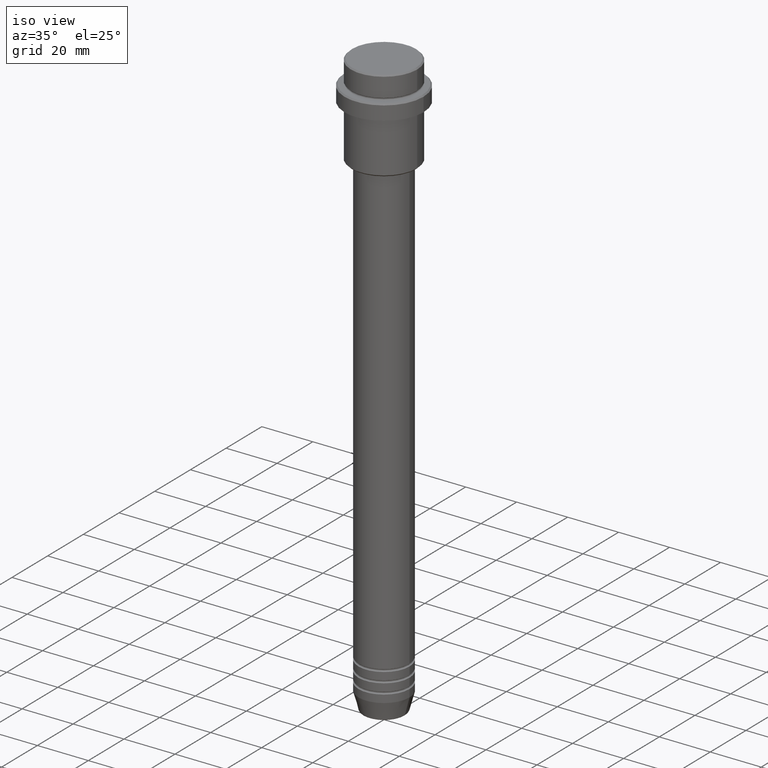
[diagram: clean part render]
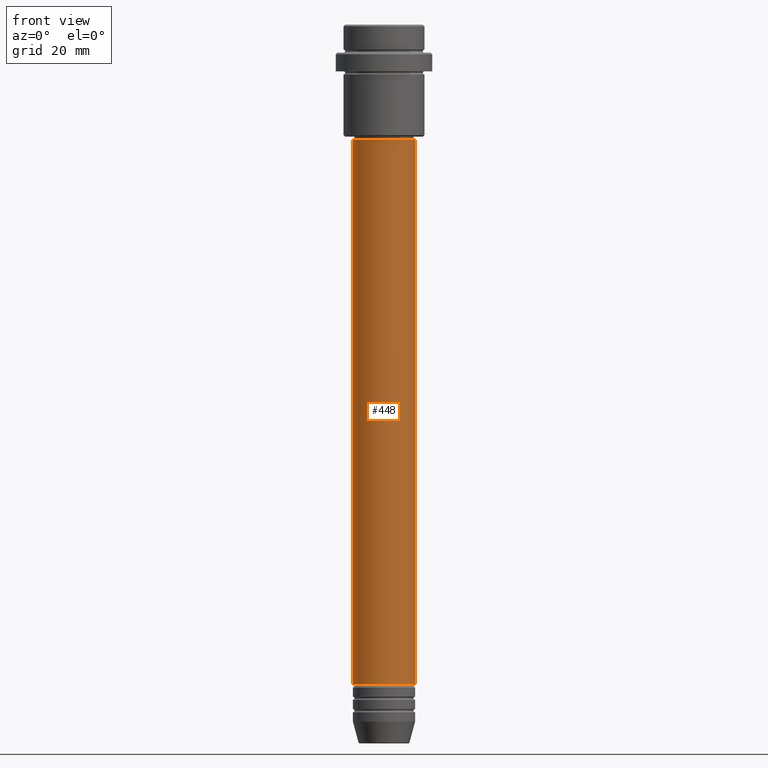
[diagram: tour spotlight — one face highlighted and labeled with its STEP entity id]
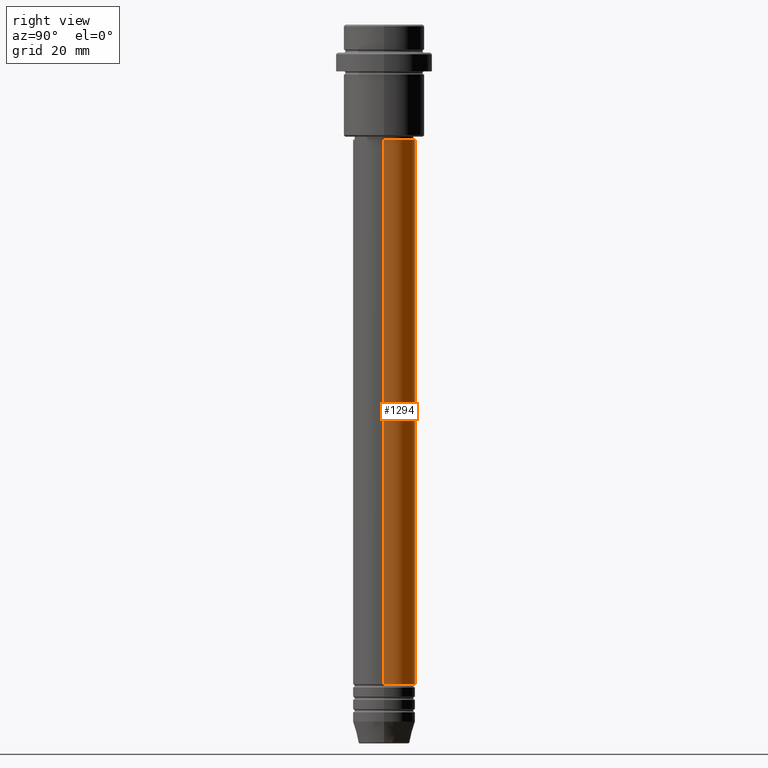
[diagram: tour spotlight — one face highlighted and labeled with its STEP entity id]
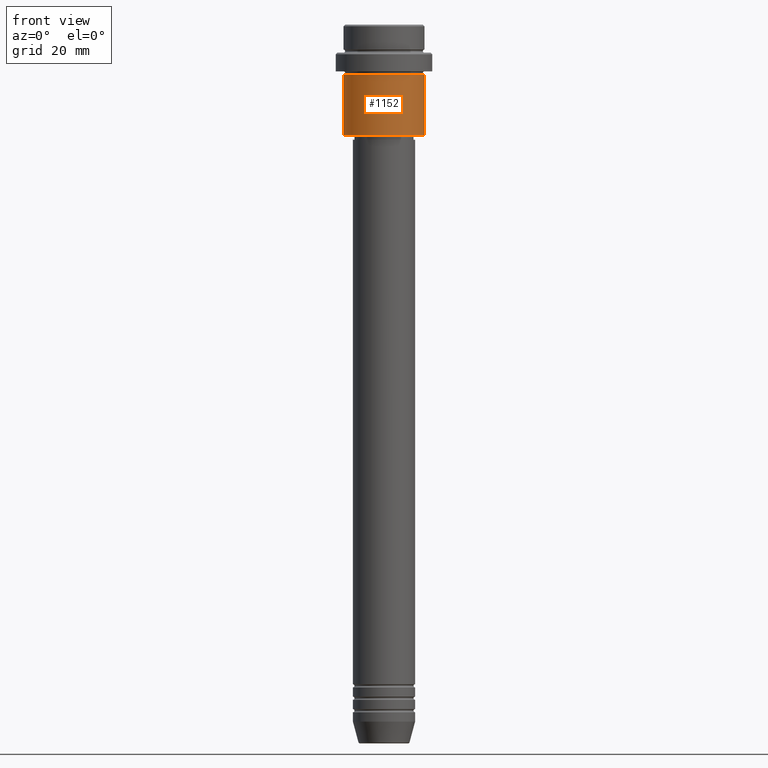
[diagram: tour spotlight — one face highlighted and labeled with its STEP entity id]
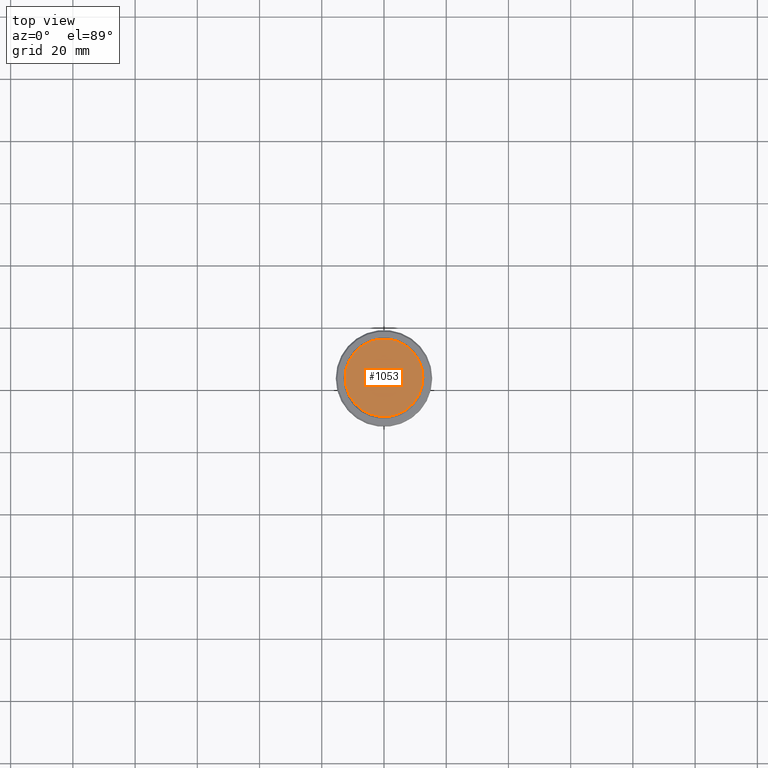
[diagram: tour spotlight — one face highlighted and labeled with its STEP entity id]
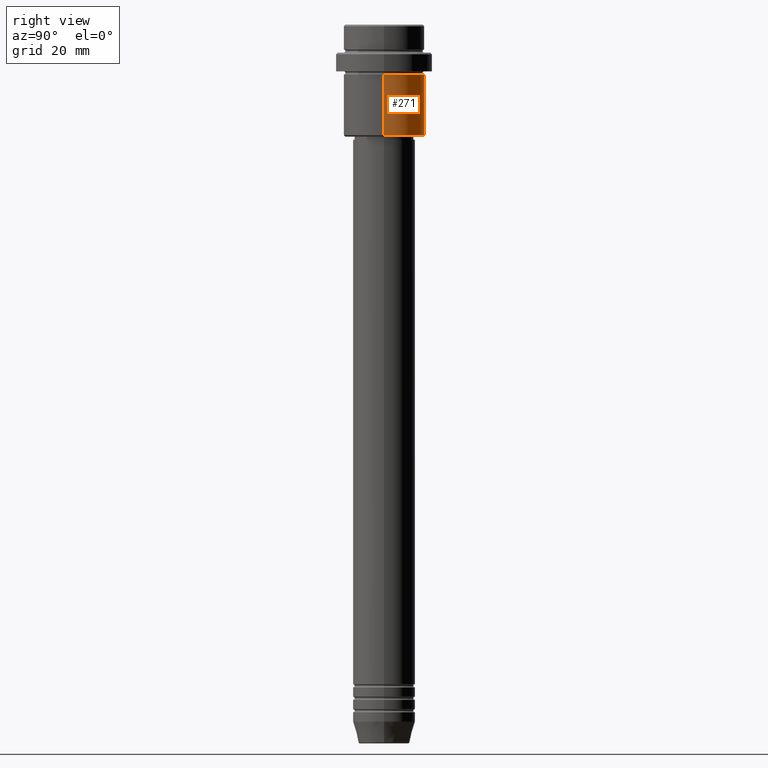
[diagram: tour spotlight — one face highlighted and labeled with its STEP entity id]
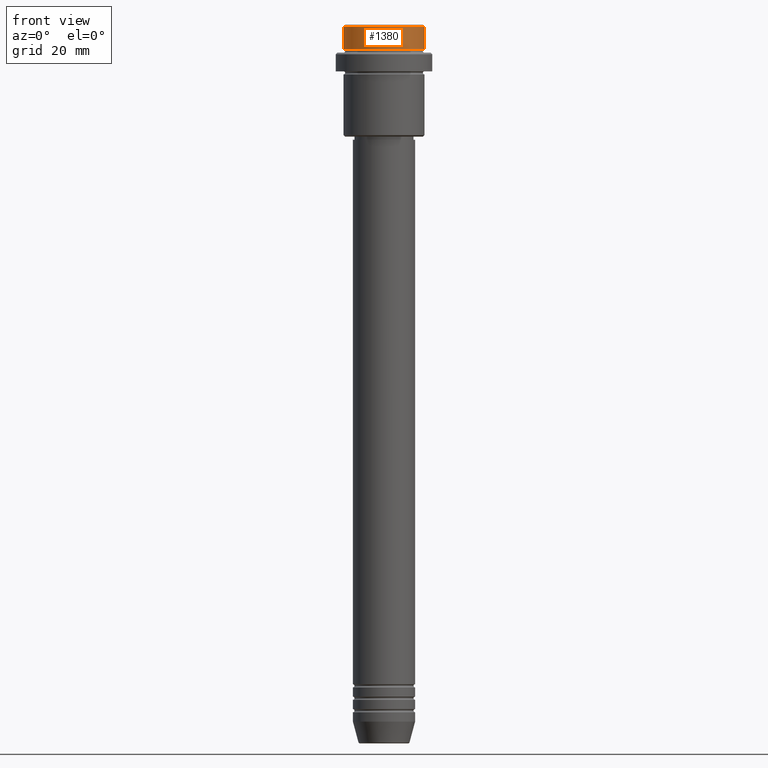
[diagram: tour spotlight — one face highlighted and labeled with its STEP entity id]
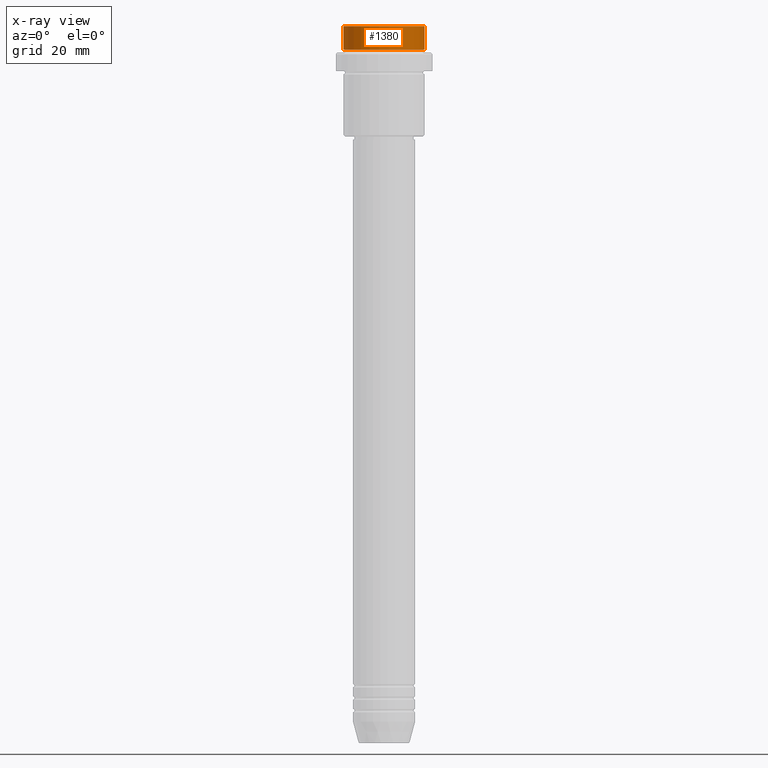
[diagram: x-ray of the same camera — body ghosted, this tour face saturated]
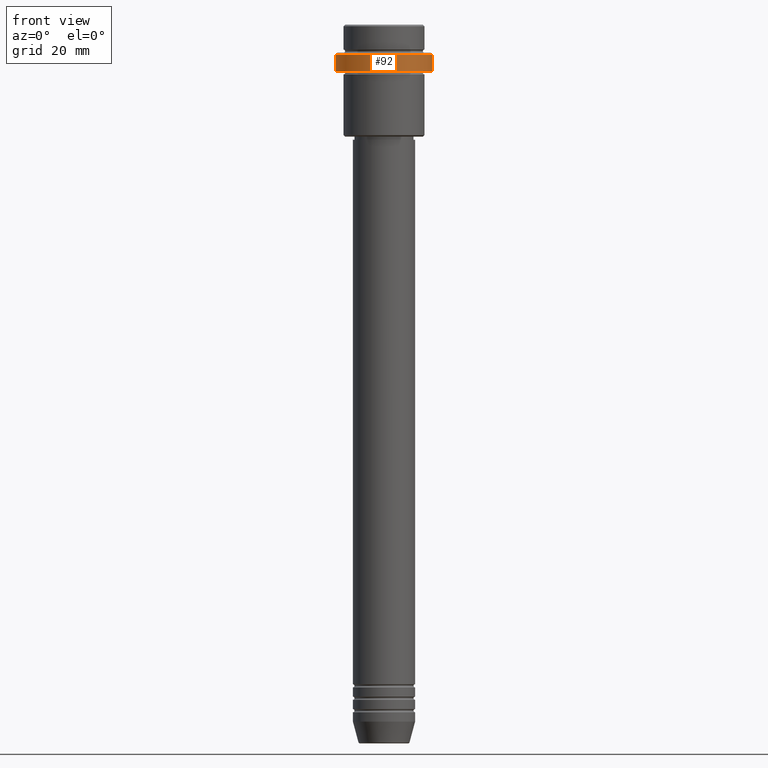
[diagram: tour spotlight — one face highlighted and labeled with its STEP entity id]
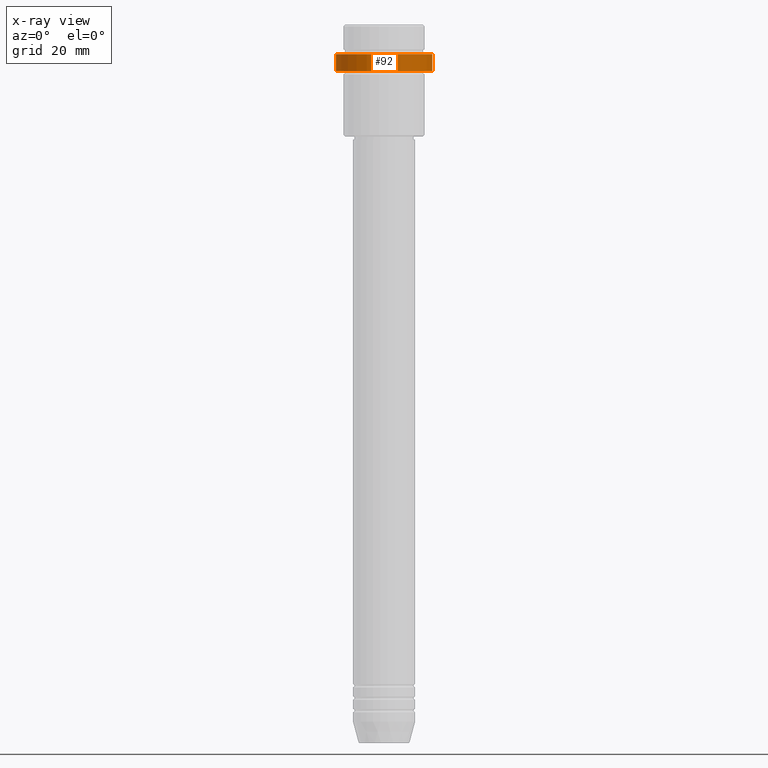
[diagram: x-ray of the same camera — body ghosted, this tour face saturated]
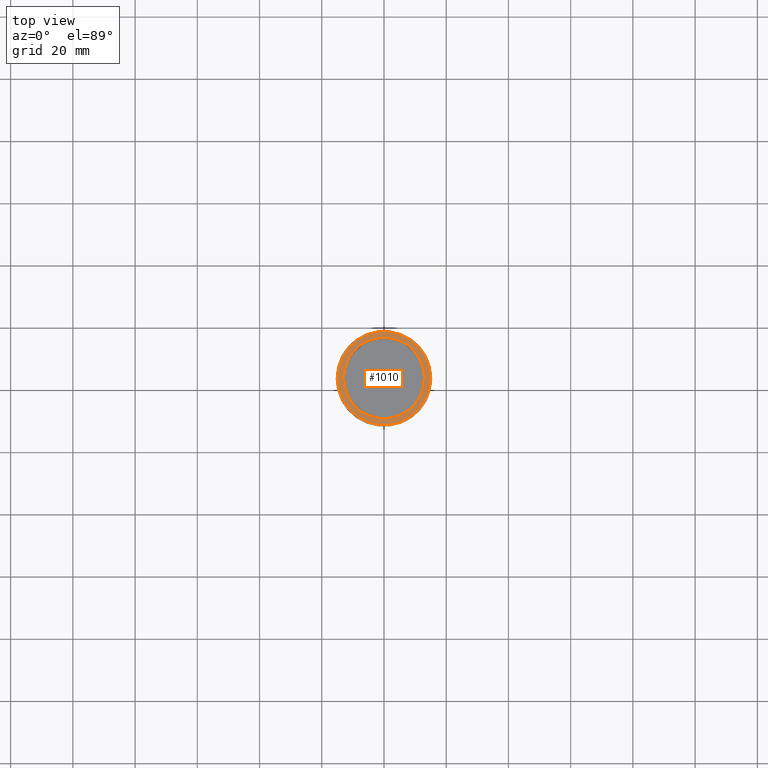
[diagram: tour spotlight — one face highlighted and labeled with its STEP entity id]
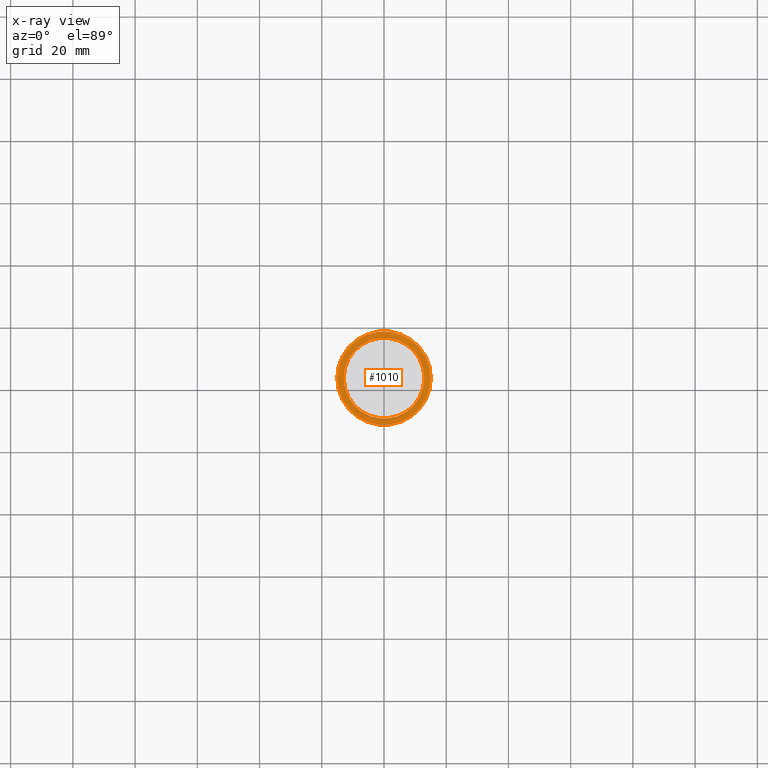
[diagram: x-ray of the same camera — body ghosted, this tour face saturated]
A machine part: a face-by-face anatomy tour. The part has 52 B-rep faces; the first image is the clean iso view, then the 8 largest visible faces are spotlighted one at a time (largest first), each with its STEP entity span.

Face 1 — front view, entity #448. In plain terms, the highlighted cylindrical surface (edge-blend (fillet) strip) has radius 10 mm, axis along (-0, -0, 1).
Definition (entity closure, byte-faithful):
#189 = ORIENTED_EDGE ( 'NONE', *, *, #756, .T. ) ;
#283 = VERTEX_POINT ( 'NONE', #499 ) ;
#292 = AXIS2_PLACEMENT_3D ( 'NONE', #1044, #854, #1378 ) ;
#362 = VECTOR ( 'NONE', #733, 1000.000000000000000 ) ;
#381 = AXIS2_PLACEMENT_3D ( 'NONE', #665, #1211, #900 ) ;
#391 = CARTESIAN_POINT ( 'NONE',  ( -10.00000000000000000, 1.224646799147353256E-15, -211.9999999999999432 ) ) ;
#393 = VERTEX_POINT ( 'NONE', #1299 ) ;
#395 = DIRECTION ( 'NONE',  ( 1.000000000000000000, 0.000000000000000000, 0.000000000000000000 ) ) ;
#423 = EDGE_CURVE ( 'NONE', #283, #1039, #673, .T. ) ;
#433 = EDGE_CURVE ( 'NONE', #393, #1039, #933, .T. ) ;
#448 = ADVANCED_FACE ( 'NONE', ( #515 ), #741, .T. ) ;
#477 = AXIS2_PLACEMENT_3D ( 'NONE', #969, #775, #395 ) ;
#499 = CARTESIAN_POINT ( 'NONE',  ( 10.00000000000000000, 0.000000000000000000, -211.9999999999999432 ) ) ;
#515 = FACE_OUTER_BOUND ( 'NONE', #970, .T. ) ;
#584 = DIRECTION ( 'NONE',  ( -0.000000000000000000, -0.000000000000000000, 1.000000000000000000 ) ) ;
#605 = ORIENTED_EDGE ( 'NONE', *, *, #993, .F. ) ;
#665 = CARTESIAN_POINT ( 'NONE',  ( 0.000000000000000000, 0.000000000000000000, -37.00000000000001421 ) ) ;
#673 = LINE ( 'NONE', #965, #362 ) ;
#718 = ORIENTED_EDGE ( 'NONE', *, *, #423, .T. ) ;
#733 = DIRECTION ( 'NONE',  ( -0.000000000000000000, -0.000000000000000000, 1.000000000000000000 ) ) ;
#741 = CYLINDRICAL_SURFACE ( 'NONE', #477, 10.00000000000000178 ) ;
#756 = EDGE_CURVE ( 'NONE', #1180, #283, #1190, .T. ) ;
#775 = DIRECTION ( 'NONE',  ( -0.000000000000000000, -0.000000000000000000, 1.000000000000000000 ) ) ;
#787 = CARTESIAN_POINT ( 'NONE',  ( 10.00000000000000178, 0.000000000000000000, -37.00000000000001421 ) ) ;
#795 = CARTESIAN_POINT ( 'NONE',  ( -10.00000000000000178, 1.224646799147353454E-15, 0.000000000000000000 ) ) ;
#854 = DIRECTION ( 'NONE',  ( -0.000000000000000000, -0.000000000000000000, 1.000000000000000000 ) ) ;
#900 = DIRECTION ( 'NONE',  ( 1.000000000000000000, 0.000000000000000000, 0.000000000000000000 ) ) ;
#918 = LINE ( 'NONE', #795, #1169 ) ;
#933 = CIRCLE ( 'NONE', #381, 10.00000000000000178 ) ;
#965 = CARTESIAN_POINT ( 'NONE',  ( 10.00000000000000178, 0.000000000000000000, 0.000000000000000000 ) ) ;
#969 = CARTESIAN_POINT ( 'NONE',  ( 0.000000000000000000, 0.000000000000000000, 0.000000000000000000 ) ) ;
#970 = EDGE_LOOP ( 'NONE', ( #605, #189, #718, #1160 ) ) ;
#993 = EDGE_CURVE ( 'NONE', #1180, #393, #918, .T. ) ;
#1039 = VERTEX_POINT ( 'NONE', #787 ) ;
#1044 = CARTESIAN_POINT ( 'NONE',  ( 0.000000000000000000, 0.000000000000000000, -211.9999999999999432 ) ) ;
#1160 = ORIENTED_EDGE ( 'NONE', *, *, #433, .F. ) ;
#1169 = VECTOR ( 'NONE', #584, 1000.000000000000000 ) ;
#1180 = VERTEX_POINT ( 'NONE', #391 ) ;
#1190 = CIRCLE ( 'NONE', #292, 10.00000000000000000 ) ;
#1211 = DIRECTION ( 'NONE',  ( -0.000000000000000000, -0.000000000000000000, 1.000000000000000000 ) ) ;
#1299 = CARTESIAN_POINT ( 'NONE',  ( -10.00000000000000178, 1.224646799147353454E-15, -37.00000000000001421 ) ) ;
#1378 = DIRECTION ( 'NONE',  ( 1.000000000000000000, 0.000000000000000000, 0.000000000000000000 ) ) ;

Face 2 — right view, entity #1294. In plain terms, the highlighted cylindrical surface (edge-blend (fillet) strip) has radius 10 mm, axis along (-0, -0, 1).
Definition (entity closure, byte-faithful):
#1 = AXIS2_PLACEMENT_3D ( 'NONE', #1298, #989, #664 ) ;
#153 = DIRECTION ( 'NONE',  ( 1.000000000000000000, 0.000000000000000000, 0.000000000000000000 ) ) ;
#256 = CARTESIAN_POINT ( 'NONE',  ( 0.000000000000000000, 0.000000000000000000, -211.9999999999999432 ) ) ;
#282 = EDGE_LOOP ( 'NONE', ( #351, #1072, #821, #1013 ) ) ;
#283 = VERTEX_POINT ( 'NONE', #499 ) ;
#296 = AXIS2_PLACEMENT_3D ( 'NONE', #1178, #311, #1095 ) ;
#311 = DIRECTION ( 'NONE',  ( -0.000000000000000000, -0.000000000000000000, 1.000000000000000000 ) ) ;
#351 = ORIENTED_EDGE ( 'NONE', *, *, #1204, .T. ) ;
#362 = VECTOR ( 'NONE', #733, 1000.000000000000000 ) ;
#391 = CARTESIAN_POINT ( 'NONE',  ( -10.00000000000000000, 1.224646799147353256E-15, -211.9999999999999432 ) ) ;
#393 = VERTEX_POINT ( 'NONE', #1299 ) ;
#423 = EDGE_CURVE ( 'NONE', #283, #1039, #673, .T. ) ;
#426 = CYLINDRICAL_SURFACE ( 'NONE', #296, 10.00000000000000178 ) ;
#499 = CARTESIAN_POINT ( 'NONE',  ( 10.00000000000000000, 0.000000000000000000, -211.9999999999999432 ) ) ;
#584 = DIRECTION ( 'NONE',  ( -0.000000000000000000, -0.000000000000000000, 1.000000000000000000 ) ) ;
#664 = DIRECTION ( 'NONE',  ( 1.000000000000000000, 0.000000000000000000, 0.000000000000000000 ) ) ;
#673 = LINE ( 'NONE', #965, #362 ) ;
#717 = CIRCLE ( 'NONE', #1, 10.00000000000000178 ) ;
#733 = DIRECTION ( 'NONE',  ( -0.000000000000000000, -0.000000000000000000, 1.000000000000000000 ) ) ;
#787 = CARTESIAN_POINT ( 'NONE',  ( 10.00000000000000178, 0.000000000000000000, -37.00000000000001421 ) ) ;
#795 = CARTESIAN_POINT ( 'NONE',  ( -10.00000000000000178, 1.224646799147353454E-15, 0.000000000000000000 ) ) ;
#815 = CIRCLE ( 'NONE', #892, 10.00000000000000000 ) ;
#821 = ORIENTED_EDGE ( 'NONE', *, *, #825, .F. ) ;
#825 = EDGE_CURVE ( 'NONE', #1039, #393, #717, .T. ) ;
#892 = AXIS2_PLACEMENT_3D ( 'NONE', #256, #1146, #153 ) ;
#918 = LINE ( 'NONE', #795, #1169 ) ;
#965 = CARTESIAN_POINT ( 'NONE',  ( 10.00000000000000178, 0.000000000000000000, 0.000000000000000000 ) ) ;
#989 = DIRECTION ( 'NONE',  ( -0.000000000000000000, -0.000000000000000000, 1.000000000000000000 ) ) ;
#993 = EDGE_CURVE ( 'NONE', #1180, #393, #918, .T. ) ;
#1013 = ORIENTED_EDGE ( 'NONE', *, *, #423, .F. ) ;
#1039 = VERTEX_POINT ( 'NONE', #787 ) ;
#1072 = ORIENTED_EDGE ( 'NONE', *, *, #993, .T. ) ;
#1095 = DIRECTION ( 'NONE',  ( 1.000000000000000000, 0.000000000000000000, 0.000000000000000000 ) ) ;
#1146 = DIRECTION ( 'NONE',  ( -0.000000000000000000, -0.000000000000000000, 1.000000000000000000 ) ) ;
#1169 = VECTOR ( 'NONE', #584, 1000.000000000000000 ) ;
#1178 = CARTESIAN_POINT ( 'NONE',  ( 0.000000000000000000, 0.000000000000000000, 0.000000000000000000 ) ) ;
#1180 = VERTEX_POINT ( 'NONE', #391 ) ;
#1203 = FACE_OUTER_BOUND ( 'NONE', #282, .T. ) ;
#1204 = EDGE_CURVE ( 'NONE', #283, #1180, #815, .T. ) ;
#1294 = ADVANCED_FACE ( 'NONE', ( #1203 ), #426, .T. ) ;
#1298 = CARTESIAN_POINT ( 'NONE',  ( 0.000000000000000000, 0.000000000000000000, -37.00000000000001421 ) ) ;
#1299 = CARTESIAN_POINT ( 'NONE',  ( -10.00000000000000178, 1.224646799147353454E-15, -37.00000000000001421 ) ) ;

Face 3 — front view, entity #1152. In plain terms, the highlighted cylindrical surface (partial cylindrical patch) has radius 13 mm, axis along (-0, -0, 1).
Definition (entity closure, byte-faithful):
#16 = CARTESIAN_POINT ( 'NONE',  ( 0.000000000000000000, 0.000000000000000000, -16.00000000000000000 ) ) ;
#20 = CIRCLE ( 'NONE', #811, 13.00000000000000000 ) ;
#29 = DIRECTION ( 'NONE',  ( 1.000000000000000000, 0.000000000000000000, 0.000000000000000000 ) ) ;
#34 = DIRECTION ( 'NONE',  ( -0.000000000000000000, -0.000000000000000000, 1.000000000000000000 ) ) ;
#50 = EDGE_LOOP ( 'NONE', ( #1402, #1091, #512, #238 ) ) ;
#72 = EDGE_CURVE ( 'NONE', #610, #513, #1368, .T. ) ;
#80 = EDGE_CURVE ( 'NONE', #1280, #610, #115, .T. ) ;
#100 = LINE ( 'NONE', #655, #385 ) ;
#115 = LINE ( 'NONE', #685, #1416 ) ;
#167 = DIRECTION ( 'NONE',  ( -0.000000000000000000, -0.000000000000000000, 1.000000000000000000 ) ) ;
#238 = ORIENTED_EDGE ( 'NONE', *, *, #72, .F. ) ;
#265 = CYLINDRICAL_SURFACE ( 'NONE', #957, 13.00000000000000000 ) ;
#274 = FACE_OUTER_BOUND ( 'NONE', #50, .T. ) ;
#305 = VERTEX_POINT ( 'NONE', #486 ) ;
#331 = EDGE_CURVE ( 'NONE', #1280, #305, #20, .T. ) ;
#385 = VECTOR ( 'NONE', #637, 1000.000000000000000 ) ;
#476 = AXIS2_PLACEMENT_3D ( 'NONE', #16, #1311, #29 ) ;
#486 = CARTESIAN_POINT ( 'NONE',  ( 13.00000000000000000, 0.000000000000000000, -35.50000000000003553 ) ) ;
#512 = ORIENTED_EDGE ( 'NONE', *, *, #1252, .T. ) ;
#513 = VERTEX_POINT ( 'NONE', #820 ) ;
#602 = DIRECTION ( 'NONE',  ( 1.000000000000000000, 0.000000000000000000, 0.000000000000000000 ) ) ;
#610 = VERTEX_POINT ( 'NONE', #686 ) ;
#637 = DIRECTION ( 'NONE',  ( -0.000000000000000000, -0.000000000000000000, 1.000000000000000000 ) ) ;
#655 = CARTESIAN_POINT ( 'NONE',  ( 13.00000000000000000, 0.000000000000000000, 0.000000000000000000 ) ) ;
#685 = CARTESIAN_POINT ( 'NONE',  ( -13.00000000000000000, 1.592040838891559095E-15, 0.000000000000000000 ) ) ;
#686 = CARTESIAN_POINT ( 'NONE',  ( -13.00000000000000000, 1.592040838891559095E-15, -16.00000000000000000 ) ) ;
#705 = CARTESIAN_POINT ( 'NONE',  ( 0.000000000000000000, 0.000000000000000000, -35.50000000000003553 ) ) ;
#729 = CARTESIAN_POINT ( 'NONE',  ( 0.000000000000000000, 0.000000000000000000, 0.000000000000000000 ) ) ;
#778 = CARTESIAN_POINT ( 'NONE',  ( -13.00000000000000000, 1.592040838891559095E-15, -35.50000000000003553 ) ) ;
#785 = DIRECTION ( 'NONE',  ( -0.000000000000000000, -0.000000000000000000, 1.000000000000000000 ) ) ;
#811 = AXIS2_PLACEMENT_3D ( 'NONE', #705, #34, #1141 ) ;
#820 = CARTESIAN_POINT ( 'NONE',  ( 13.00000000000000000, 0.000000000000000000, -16.00000000000000000 ) ) ;
#957 = AXIS2_PLACEMENT_3D ( 'NONE', #729, #167, #602 ) ;
#1091 = ORIENTED_EDGE ( 'NONE', *, *, #331, .T. ) ;
#1141 = DIRECTION ( 'NONE',  ( -1.000000000000000000, 0.000000000000000000, 0.000000000000000000 ) ) ;
#1152 = ADVANCED_FACE ( 'NONE', ( #274 ), #265, .T. ) ;
#1252 = EDGE_CURVE ( 'NONE', #305, #513, #100, .T. ) ;
#1280 = VERTEX_POINT ( 'NONE', #778 ) ;
#1311 = DIRECTION ( 'NONE',  ( -0.000000000000000000, -0.000000000000000000, 1.000000000000000000 ) ) ;
#1368 = CIRCLE ( 'NONE', #476, 13.00000000000000000 ) ;
#1402 = ORIENTED_EDGE ( 'NONE', *, *, #80, .F. ) ;
#1416 = VECTOR ( 'NONE', #785, 1000.000000000000000 ) ;

Face 4 — top view, entity #1053. In plain terms, the highlighted planar face has unit normal (0, -0, 1).
Definition (entity closure, byte-faithful):
#3 = AXIS2_PLACEMENT_3D ( 'NONE', #890, #439, #868 ) ;
#350 = ORIENTED_EDGE ( 'NONE', *, *, #1151, .T. ) ;
#439 = DIRECTION ( 'NONE',  ( -0.000000000000000000, -0.000000000000000000, 1.000000000000000000 ) ) ;
#456 = CIRCLE ( 'NONE', #773, 12.49999999999998579 ) ;
#466 = FACE_OUTER_BOUND ( 'NONE', #488, .T. ) ;
#474 = CARTESIAN_POINT ( 'NONE',  ( -12.49999999999998579, 0.000000000000000000, 0.000000000000000000 ) ) ;
#488 = EDGE_LOOP ( 'NONE', ( #1222, #350 ) ) ;
#498 = VERTEX_POINT ( 'NONE', #474 ) ;
#563 = DIRECTION ( 'NONE',  ( 1.000000000000000000, 0.000000000000000000, 0.000000000000000000 ) ) ;
#621 = CARTESIAN_POINT ( 'NONE',  ( 0.000000000000000000, 0.000000000000000000, 0.000000000000000000 ) ) ;
#773 = AXIS2_PLACEMENT_3D ( 'NONE', #621, #944, #1263 ) ;
#868 = DIRECTION ( 'NONE',  ( 1.000000000000000000, 0.000000000000000000, 0.000000000000000000 ) ) ;
#890 = CARTESIAN_POINT ( 'NONE',  ( 0.000000000000000000, 0.000000000000000000, 0.000000000000000000 ) ) ;
#895 = EDGE_CURVE ( 'NONE', #498, #1239, #1059, .T. ) ;
#925 = CARTESIAN_POINT ( 'NONE',  ( 0.000000000000000000, 0.000000000000000000, 0.000000000000000000 ) ) ;
#944 = DIRECTION ( 'NONE',  ( -0.000000000000000000, -0.000000000000000000, 1.000000000000000000 ) ) ;
#1053 = ADVANCED_FACE ( 'NONE', ( #466 ), #1329, .T. ) ;
#1059 = CIRCLE ( 'NONE', #3, 12.49999999999998579 ) ;
#1101 = CARTESIAN_POINT ( 'NONE',  ( 12.49999999999998579, 1.561424668912874125E-15, 0.000000000000000000 ) ) ;
#1117 = DIRECTION ( 'NONE',  ( 0.000000000000000000, -0.000000000000000000, 1.000000000000000000 ) ) ;
#1151 = EDGE_CURVE ( 'NONE', #1239, #498, #456, .T. ) ;
#1222 = ORIENTED_EDGE ( 'NONE', *, *, #895, .T. ) ;
#1239 = VERTEX_POINT ( 'NONE', #1101 ) ;
#1263 = DIRECTION ( 'NONE',  ( 1.000000000000000000, 0.000000000000000000, 0.000000000000000000 ) ) ;
#1279 = AXIS2_PLACEMENT_3D ( 'NONE', #925, #1117, #563 ) ;
#1329 = PLANE ( 'NONE',  #1279 ) ;

Face 5 — right view, entity #271. In plain terms, the highlighted cylindrical surface (partial cylindrical patch) has radius 13 mm, axis along (-0, -0, 1).
Definition (entity closure, byte-faithful):
#51 = DIRECTION ( 'NONE',  ( 1.000000000000000000, 0.000000000000000000, 0.000000000000000000 ) ) ;
#80 = EDGE_CURVE ( 'NONE', #1280, #610, #115, .T. ) ;
#100 = LINE ( 'NONE', #655, #385 ) ;
#115 = LINE ( 'NONE', #685, #1416 ) ;
#127 = ORIENTED_EDGE ( 'NONE', *, *, #1252, .F. ) ;
#147 = DIRECTION ( 'NONE',  ( 1.000000000000000000, 0.000000000000000000, 0.000000000000000000 ) ) ;
#165 = FACE_OUTER_BOUND ( 'NONE', #1140, .T. ) ;
#246 = DIRECTION ( 'NONE',  ( -0.000000000000000000, -0.000000000000000000, 1.000000000000000000 ) ) ;
#251 = CARTESIAN_POINT ( 'NONE',  ( 0.000000000000000000, 0.000000000000000000, 0.000000000000000000 ) ) ;
#271 = ADVANCED_FACE ( 'NONE', ( #165 ), #1051, .T. ) ;
#305 = VERTEX_POINT ( 'NONE', #486 ) ;
#385 = VECTOR ( 'NONE', #637, 1000.000000000000000 ) ;
#411 = CIRCLE ( 'NONE', #867, 13.00000000000000000 ) ;
#486 = CARTESIAN_POINT ( 'NONE',  ( 13.00000000000000000, 0.000000000000000000, -35.50000000000003553 ) ) ;
#513 = VERTEX_POINT ( 'NONE', #820 ) ;
#518 = ORIENTED_EDGE ( 'NONE', *, *, #1341, .T. ) ;
#610 = VERTEX_POINT ( 'NONE', #686 ) ;
#623 = AXIS2_PLACEMENT_3D ( 'NONE', #1408, #760, #1173 ) ;
#637 = DIRECTION ( 'NONE',  ( -0.000000000000000000, -0.000000000000000000, 1.000000000000000000 ) ) ;
#654 = ORIENTED_EDGE ( 'NONE', *, *, #1175, .F. ) ;
#655 = CARTESIAN_POINT ( 'NONE',  ( 13.00000000000000000, 0.000000000000000000, 0.000000000000000000 ) ) ;
#685 = CARTESIAN_POINT ( 'NONE',  ( -13.00000000000000000, 1.592040838891559095E-15, 0.000000000000000000 ) ) ;
#686 = CARTESIAN_POINT ( 'NONE',  ( -13.00000000000000000, 1.592040838891559095E-15, -16.00000000000000000 ) ) ;
#721 = CIRCLE ( 'NONE', #623, 13.00000000000000000 ) ;
#739 = ORIENTED_EDGE ( 'NONE', *, *, #80, .T. ) ;
#760 = DIRECTION ( 'NONE',  ( -0.000000000000000000, -0.000000000000000000, 1.000000000000000000 ) ) ;
#778 = CARTESIAN_POINT ( 'NONE',  ( -13.00000000000000000, 1.592040838891559095E-15, -35.50000000000003553 ) ) ;
#785 = DIRECTION ( 'NONE',  ( -0.000000000000000000, -0.000000000000000000, 1.000000000000000000 ) ) ;
#820 = CARTESIAN_POINT ( 'NONE',  ( 13.00000000000000000, 0.000000000000000000, -16.00000000000000000 ) ) ;
#858 = AXIS2_PLACEMENT_3D ( 'NONE', #251, #246, #51 ) ;
#867 = AXIS2_PLACEMENT_3D ( 'NONE', #1245, #1142, #147 ) ;
#1051 = CYLINDRICAL_SURFACE ( 'NONE', #858, 13.00000000000000000 ) ;
#1140 = EDGE_LOOP ( 'NONE', ( #518, #739, #654, #127 ) ) ;
#1142 = DIRECTION ( 'NONE',  ( -0.000000000000000000, -0.000000000000000000, 1.000000000000000000 ) ) ;
#1173 = DIRECTION ( 'NONE',  ( -1.000000000000000000, 0.000000000000000000, 0.000000000000000000 ) ) ;
#1175 = EDGE_CURVE ( 'NONE', #513, #610, #411, .T. ) ;
#1245 = CARTESIAN_POINT ( 'NONE',  ( 0.000000000000000000, 0.000000000000000000, -16.00000000000000000 ) ) ;
#1252 = EDGE_CURVE ( 'NONE', #305, #513, #100, .T. ) ;
#1280 = VERTEX_POINT ( 'NONE', #778 ) ;
#1341 = EDGE_CURVE ( 'NONE', #305, #1280, #721, .T. ) ;
#1408 = CARTESIAN_POINT ( 'NONE',  ( 0.000000000000000000, 0.000000000000000000, -35.50000000000003553 ) ) ;
#1416 = VECTOR ( 'NONE', #785, 1000.000000000000000 ) ;

Face 6 — front view, entity #1380. An x-ray twin of the same camera follows (body ghosted, this face saturated) — the face is partly hidden behind the body. In plain terms, the highlighted cylindrical surface (partial cylindrical patch) has radius 13 mm, axis along (-0, -0, 1).
Definition (entity closure, byte-faithful):
#52 = VERTEX_POINT ( 'NONE', #1068 ) ;
#58 = CARTESIAN_POINT ( 'NONE',  ( -12.99999999999999822, 1.592040838891558898E-15, -0.5000000000000316414 ) ) ;
#88 = VECTOR ( 'NONE', #754, 1000.000000000000000 ) ;
#195 = ORIENTED_EDGE ( 'NONE', *, *, #702, .T. ) ;
#217 = DIRECTION ( 'NONE',  ( -0.000000000000000000, -0.000000000000000000, 1.000000000000000000 ) ) ;
#270 = ORIENTED_EDGE ( 'NONE', *, *, #921, .T. ) ;
#281 = DIRECTION ( 'NONE',  ( 0.000000000000000000, 0.000000000000000000, -1.000000000000000000 ) ) ;
#299 = CARTESIAN_POINT ( 'NONE',  ( 12.99999999999999822, 0.000000000000000000, 0.000000000000000000 ) ) ;
#327 = CARTESIAN_POINT ( 'NONE',  ( 12.99999999999999822, 0.000000000000000000, -7.999999999999998224 ) ) ;
#344 = AXIS2_PLACEMENT_3D ( 'NONE', #1214, #217, #909 ) ;
#408 = CIRCLE ( 'NONE', #1302, 12.99999999999999822 ) ;
#412 = VERTEX_POINT ( 'NONE', #327 ) ;
#470 = VERTEX_POINT ( 'NONE', #992 ) ;
#544 = FACE_OUTER_BOUND ( 'NONE', #885, .T. ) ;
#604 = DIRECTION ( 'NONE',  ( 1.000000000000000000, 0.000000000000000000, 0.000000000000000000 ) ) ;
#619 = AXIS2_PLACEMENT_3D ( 'NONE', #847, #281, #1384 ) ;
#648 = LINE ( 'NONE', #299, #88 ) ;
#702 = EDGE_CURVE ( 'NONE', #470, #412, #408, .T. ) ;
#707 = EDGE_CURVE ( 'NONE', #52, #1078, #1238, .T. ) ;
#754 = DIRECTION ( 'NONE',  ( -0.000000000000000000, -0.000000000000000000, 1.000000000000000000 ) ) ;
#777 = ORIENTED_EDGE ( 'NONE', *, *, #1084, .F. ) ;
#841 = CARTESIAN_POINT ( 'NONE',  ( 0.000000000000000000, 0.000000000000000000, -7.999999999999998224 ) ) ;
#847 = CARTESIAN_POINT ( 'NONE',  ( 0.000000000000000000, 0.000000000000000000, -0.5000000000000316414 ) ) ;
#885 = EDGE_LOOP ( 'NONE', ( #777, #195, #270, #1082 ) ) ;
#891 = VECTOR ( 'NONE', #939, 1000.000000000000000 ) ;
#909 = DIRECTION ( 'NONE',  ( 1.000000000000000000, 0.000000000000000000, 0.000000000000000000 ) ) ;
#921 = EDGE_CURVE ( 'NONE', #412, #52, #648, .T. ) ;
#939 = DIRECTION ( 'NONE',  ( -0.000000000000000000, -0.000000000000000000, 1.000000000000000000 ) ) ;
#949 = CARTESIAN_POINT ( 'NONE',  ( -12.99999999999999822, 1.592040838891558898E-15, 0.000000000000000000 ) ) ;
#992 = CARTESIAN_POINT ( 'NONE',  ( -12.99999999999999822, 1.592040838891558898E-15, -7.999999999999998224 ) ) ;
#1068 = CARTESIAN_POINT ( 'NONE',  ( 12.99999999999999822, 0.000000000000000000, -0.5000000000000316414 ) ) ;
#1078 = VERTEX_POINT ( 'NONE', #58 ) ;
#1082 = ORIENTED_EDGE ( 'NONE', *, *, #707, .T. ) ;
#1084 = EDGE_CURVE ( 'NONE', #470, #1078, #1383, .T. ) ;
#1214 = CARTESIAN_POINT ( 'NONE',  ( 0.000000000000000000, 0.000000000000000000, 0.000000000000000000 ) ) ;
#1238 = CIRCLE ( 'NONE', #619, 12.99999999999999822 ) ;
#1264 = DIRECTION ( 'NONE',  ( -0.000000000000000000, -0.000000000000000000, 1.000000000000000000 ) ) ;
#1302 = AXIS2_PLACEMENT_3D ( 'NONE', #841, #1264, #604 ) ;
#1317 = CYLINDRICAL_SURFACE ( 'NONE', #344, 12.99999999999999822 ) ;
#1380 = ADVANCED_FACE ( 'NONE', ( #544 ), #1317, .T. ) ;
#1383 = LINE ( 'NONE', #949, #891 ) ;
#1384 = DIRECTION ( 'NONE',  ( 1.000000000000000000, 0.000000000000000000, 0.000000000000000000 ) ) ;

Face 7 — front view, entity #92. An x-ray twin of the same camera follows (body ghosted, this face saturated) — the face is partly hidden behind the body. In plain terms, the highlighted cylindrical surface (partial cylindrical patch) has radius 15.5 mm, axis along (-0, -0, 1).
Definition (entity closure, byte-faithful):
#33 = EDGE_CURVE ( 'NONE', #684, #211, #1349, .T. ) ;
#91 = LINE ( 'NONE', #995, #181 ) ;
#92 = ADVANCED_FACE ( 'NONE', ( #459 ), #923, .T. ) ;
#163 = CARTESIAN_POINT ( 'NONE',  ( 15.50000000000000000, 0.000000000000000000, -9.500000000000014211 ) ) ;
#178 = CIRCLE ( 'NONE', #364, 15.50000000000000000 ) ;
#181 = VECTOR ( 'NONE', #538, 1000.000000000000000 ) ;
#202 = VECTOR ( 'NONE', #704, 1000.000000000000000 ) ;
#209 = DIRECTION ( 'NONE',  ( 1.000000000000000000, 0.000000000000000000, 0.000000000000000000 ) ) ;
#211 = VERTEX_POINT ( 'NONE', #1120 ) ;
#297 = CARTESIAN_POINT ( 'NONE',  ( 0.000000000000000000, 0.000000000000000000, -15.00000000000000178 ) ) ;
#306 = DIRECTION ( 'NONE',  ( 1.000000000000000000, 0.000000000000000000, 0.000000000000000000 ) ) ;
#357 = CARTESIAN_POINT ( 'NONE',  ( 0.000000000000000000, 0.000000000000000000, 0.000000000000000000 ) ) ;
#364 = AXIS2_PLACEMENT_3D ( 'NONE', #876, #428, #306 ) ;
#386 = CARTESIAN_POINT ( 'NONE',  ( -15.50000000000000000, 1.898202538678397557E-15, -9.500000000000014211 ) ) ;
#396 = EDGE_LOOP ( 'NONE', ( #808, #770, #1027, #740 ) ) ;
#428 = DIRECTION ( 'NONE',  ( 0.000000000000000000, 0.000000000000000000, -1.000000000000000000 ) ) ;
#459 = FACE_OUTER_BOUND ( 'NONE', #396, .T. ) ;
#538 = DIRECTION ( 'NONE',  ( -0.000000000000000000, -0.000000000000000000, 1.000000000000000000 ) ) ;
#608 = EDGE_CURVE ( 'NONE', #684, #662, #682, .T. ) ;
#630 = DIRECTION ( 'NONE',  ( 1.000000000000000000, 0.000000000000000000, 0.000000000000000000 ) ) ;
#662 = VERTEX_POINT ( 'NONE', #386 ) ;
#682 = LINE ( 'NONE', #1241, #202 ) ;
#684 = VERTEX_POINT ( 'NONE', #1371 ) ;
#704 = DIRECTION ( 'NONE',  ( -0.000000000000000000, -0.000000000000000000, 1.000000000000000000 ) ) ;
#740 = ORIENTED_EDGE ( 'NONE', *, *, #842, .T. ) ;
#752 = DIRECTION ( 'NONE',  ( -0.000000000000000000, -0.000000000000000000, 1.000000000000000000 ) ) ;
#770 = ORIENTED_EDGE ( 'NONE', *, *, #33, .T. ) ;
#808 = ORIENTED_EDGE ( 'NONE', *, *, #608, .F. ) ;
#842 = EDGE_CURVE ( 'NONE', #1089, #662, #178, .T. ) ;
#876 = CARTESIAN_POINT ( 'NONE',  ( 0.000000000000000000, 0.000000000000000000, -9.500000000000014211 ) ) ;
#923 = CYLINDRICAL_SURFACE ( 'NONE', #1274, 15.50000000000000000 ) ;
#995 = CARTESIAN_POINT ( 'NONE',  ( 15.50000000000000000, 0.000000000000000000, 0.000000000000000000 ) ) ;
#1027 = ORIENTED_EDGE ( 'NONE', *, *, #1331, .T. ) ;
#1089 = VERTEX_POINT ( 'NONE', #163 ) ;
#1120 = CARTESIAN_POINT ( 'NONE',  ( 15.50000000000000000, 0.000000000000000000, -15.00000000000000178 ) ) ;
#1202 = DIRECTION ( 'NONE',  ( -0.000000000000000000, -0.000000000000000000, 1.000000000000000000 ) ) ;
#1241 = CARTESIAN_POINT ( 'NONE',  ( -15.50000000000000000, 1.898202538678397557E-15, 0.000000000000000000 ) ) ;
#1274 = AXIS2_PLACEMENT_3D ( 'NONE', #357, #1202, #209 ) ;
#1322 = AXIS2_PLACEMENT_3D ( 'NONE', #297, #752, #630 ) ;
#1331 = EDGE_CURVE ( 'NONE', #211, #1089, #91, .T. ) ;
#1349 = CIRCLE ( 'NONE', #1322, 15.50000000000000000 ) ;
#1371 = CARTESIAN_POINT ( 'NONE',  ( -15.50000000000000000, 1.898202538678397557E-15, -15.00000000000000178 ) ) ;

Face 8 — top view, entity #1010. An x-ray twin of the same camera follows (body ghosted, this face saturated) — the face is partly hidden behind the body. In plain terms, the highlighted planar face has unit normal (0, -0, 1).
Definition (entity closure, byte-faithful):
#18 = DIRECTION ( 'NONE',  ( -0.000000000000000000, -0.000000000000000000, 1.000000000000000000 ) ) ;
#118 = CARTESIAN_POINT ( 'NONE',  ( 0.000000000000000000, 0.000000000000000000, -9.000000000000001776 ) ) ;
#125 = EDGE_LOOP ( 'NONE', ( #1080, #534 ) ) ;
#144 = CARTESIAN_POINT ( 'NONE',  ( 0.000000000000000000, 0.000000000000000000, -9.000000000000001776 ) ) ;
#179 = AXIS2_PLACEMENT_3D ( 'NONE', #1024, #1122, #1217 ) ;
#242 = FACE_BOUND ( 'NONE', #125, .T. ) ;
#328 = ORIENTED_EDGE ( 'NONE', *, *, #988, .T. ) ;
#338 = EDGE_CURVE ( 'NONE', #562, #520, #884, .T. ) ;
#354 = PLANE ( 'NONE',  #179 ) ;
#367 = AXIS2_PLACEMENT_3D ( 'NONE', #1351, #18, #1237 ) ;
#410 = VERTEX_POINT ( 'NONE', #557 ) ;
#480 = DIRECTION ( 'NONE',  ( 1.000000000000000000, 0.000000000000000000, 0.000000000000000000 ) ) ;
#517 = DIRECTION ( 'NONE',  ( 0.000000000000000000, 0.000000000000000000, -1.000000000000000000 ) ) ;
#520 = VERTEX_POINT ( 'NONE', #694 ) ;
#534 = ORIENTED_EDGE ( 'NONE', *, *, #338, .T. ) ;
#540 = EDGE_CURVE ( 'NONE', #878, #410, #578, .T. ) ;
#557 = CARTESIAN_POINT ( 'NONE',  ( -14.99999999999998579, 0.000000000000000000, -9.000000000000001776 ) ) ;
#562 = VERTEX_POINT ( 'NONE', #1232 ) ;
#578 = CIRCLE ( 'NONE', #1081, 14.99999999999998579 ) ;
#593 = DIRECTION ( 'NONE',  ( 0.000000000000000000, 0.000000000000000000, -1.000000000000000000 ) ) ;
#618 = AXIS2_PLACEMENT_3D ( 'NONE', #144, #593, #480 ) ;
#639 = CARTESIAN_POINT ( 'NONE',  ( 14.99999999999998579, 1.867586368699712587E-15, -9.000000000000001776 ) ) ;
#694 = CARTESIAN_POINT ( 'NONE',  ( 12.99999999999999467, 0.000000000000000000, -9.000000000000001776 ) ) ;
#803 = DIRECTION ( 'NONE',  ( -0.000000000000000000, -0.000000000000000000, 1.000000000000000000 ) ) ;
#863 = CARTESIAN_POINT ( 'NONE',  ( 0.000000000000000000, 0.000000000000000000, -9.000000000000001776 ) ) ;
#878 = VERTEX_POINT ( 'NONE', #639 ) ;
#884 = CIRCLE ( 'NONE', #618, 12.99999999999999467 ) ;
#988 = EDGE_CURVE ( 'NONE', #410, #878, #1218, .T. ) ;
#1007 = ORIENTED_EDGE ( 'NONE', *, *, #540, .T. ) ;
#1010 = ADVANCED_FACE ( 'NONE', ( #1109, #242 ), #354, .T. ) ;
#1024 = CARTESIAN_POINT ( 'NONE',  ( 0.000000000000000000, 12.49999999999999289, -9.000000000000001776 ) ) ;
#1061 = AXIS2_PLACEMENT_3D ( 'NONE', #863, #517, #1305 ) ;
#1080 = ORIENTED_EDGE ( 'NONE', *, *, #1272, .T. ) ;
#1081 = AXIS2_PLACEMENT_3D ( 'NONE', #118, #803, #1131 ) ;
#1109 = FACE_OUTER_BOUND ( 'NONE', #1296, .T. ) ;
#1122 = DIRECTION ( 'NONE',  ( 0.000000000000000000, -0.000000000000000000, 1.000000000000000000 ) ) ;
#1131 = DIRECTION ( 'NONE',  ( 1.000000000000000000, 0.000000000000000000, 0.000000000000000000 ) ) ;
#1217 = DIRECTION ( 'NONE',  ( 1.000000000000000000, 0.000000000000000000, 0.000000000000000000 ) ) ;
#1218 = CIRCLE ( 'NONE', #367, 14.99999999999998579 ) ;
#1232 = CARTESIAN_POINT ( 'NONE',  ( -12.99999999999999467, 1.592040838891558504E-15, -9.000000000000001776 ) ) ;
#1237 = DIRECTION ( 'NONE',  ( 1.000000000000000000, 0.000000000000000000, 0.000000000000000000 ) ) ;
#1272 = EDGE_CURVE ( 'NONE', #520, #562, #1401, .T. ) ;
#1296 = EDGE_LOOP ( 'NONE', ( #328, #1007 ) ) ;
#1305 = DIRECTION ( 'NONE',  ( 1.000000000000000000, 0.000000000000000000, 0.000000000000000000 ) ) ;
#1351 = CARTESIAN_POINT ( 'NONE',  ( 0.000000000000000000, 0.000000000000000000, -9.000000000000001776 ) ) ;
#1401 = CIRCLE ( 'NONE', #1061, 12.99999999999999467 ) ;